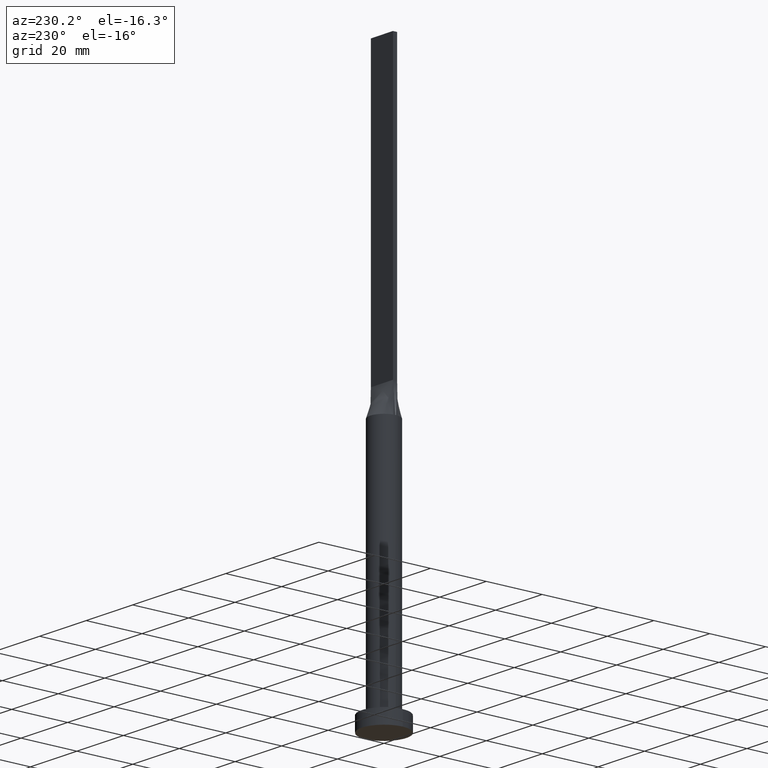
[diagram: clean part render]
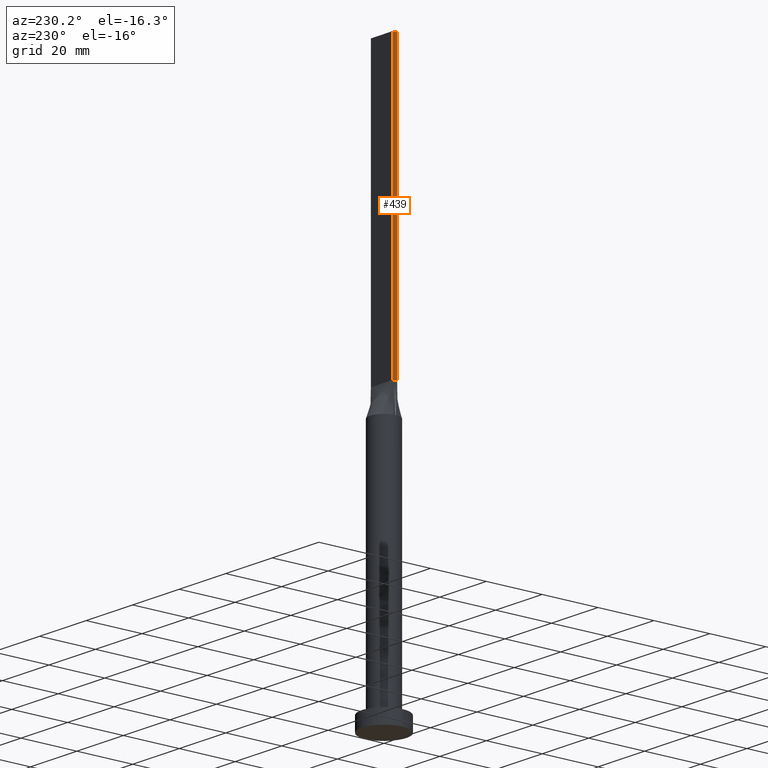
[diagram: same view with one face highlighted and labeled with its STEP entity id]
A machine part, auxiliary view. The second image highlights one B-rep face of the part: STEP entity #439.
In plain terms, the highlighted planar face has unit normal (1, 0, -0).
Its self-contained STEP definition (entity closure, byte-faithful):
#23 = FACE_OUTER_BOUND ( 'NONE', #105, .T. ) ;
#24 = CARTESIAN_POINT ( 'NONE',  ( -4.750000000000000000, 0.7500000000000002220, 200.0000000000000000 ) ) ;
#47 = VECTOR ( 'NONE', #360, 1000.000000000000000 ) ;
#51 = ORIENTED_EDGE ( 'NONE', *, *, #355, .T. ) ;
#54 = AXIS2_PLACEMENT_3D ( 'NONE', #449, #176, #162 ) ;
#66 = VECTOR ( 'NONE', #357, 1000.000000000000000 ) ;
#69 = VERTEX_POINT ( 'NONE', #526 ) ;
#87 = VERTEX_POINT ( 'NONE', #314 ) ;
#92 = VERTEX_POINT ( 'NONE', #598 ) ;
#105 = EDGE_LOOP ( 'NONE', ( #384, #503, #592, #51 ) ) ;
#113 = EDGE_CURVE ( 'NONE', #588, #87, #228, .T. ) ;
#133 = LINE ( 'NONE', #213, #66 ) ;
#156 = EDGE_CURVE ( 'NONE', #87, #69, #133, .T. ) ;
#162 = DIRECTION ( 'NONE',  ( -0.000000000000000000, 0.000000000000000000, -1.000000000000000000 ) ) ;
#176 = DIRECTION ( 'NONE',  ( 1.000000000000000000, 0.000000000000000000, -0.000000000000000000 ) ) ;
#210 = EDGE_CURVE ( 'NONE', #92, #69, #317, .T. ) ;
#213 = CARTESIAN_POINT ( 'NONE',  ( -4.750000000000000000, -0.7499999999999991118, 200.0000000000000000 ) ) ;
#228 = LINE ( 'NONE', #24, #47 ) ;
#294 = CARTESIAN_POINT ( 'NONE',  ( -4.750000000000000000, 0.7500000000000002220, 200.0000000000000000 ) ) ;
#314 = CARTESIAN_POINT ( 'NONE',  ( -4.750000000000000000, -0.7499999999999991118, 200.0000000000000000 ) ) ;
#317 = LINE ( 'NONE', #468, #604 ) ;
#355 = EDGE_CURVE ( 'NONE', #588, #92, #528, .T. ) ;
#357 = DIRECTION ( 'NONE',  ( -0.000000000000000000, -0.000000000000000000, -1.000000000000000000 ) ) ;
#360 = DIRECTION ( 'NONE',  ( 0.000000000000000000, -1.000000000000000000, 0.000000000000000000 ) ) ;
#384 = ORIENTED_EDGE ( 'NONE', *, *, #210, .T. ) ;
#430 = DIRECTION ( 'NONE',  ( 0.000000000000000000, -1.000000000000000000, 0.000000000000000000 ) ) ;
#439 = ADVANCED_FACE ( 'NONE', ( #23 ), #498, .F. ) ;
#449 = CARTESIAN_POINT ( 'NONE',  ( -4.750000000000000000, 0.7500000000000002220, 200.0000000000000000 ) ) ;
#468 = CARTESIAN_POINT ( 'NONE',  ( -4.750000000000000000, 0.7500000000000002220, 100.0000000000000000 ) ) ;
#498 = PLANE ( 'NONE',  #54 ) ;
#503 = ORIENTED_EDGE ( 'NONE', *, *, #156, .F. ) ;
#523 = DIRECTION ( 'NONE',  ( -0.000000000000000000, -0.000000000000000000, -1.000000000000000000 ) ) ;
#526 = CARTESIAN_POINT ( 'NONE',  ( -4.750000000000000000, -0.7499999999999991118, 100.0000000000000000 ) ) ;
#528 = LINE ( 'NONE', #294, #558 ) ;
#544 = CARTESIAN_POINT ( 'NONE',  ( -4.750000000000000000, 0.7500000000000002220, 200.0000000000000000 ) ) ;
#558 = VECTOR ( 'NONE', #523, 1000.000000000000000 ) ;
#588 = VERTEX_POINT ( 'NONE', #544 ) ;
#592 = ORIENTED_EDGE ( 'NONE', *, *, #113, .F. ) ;
#598 = CARTESIAN_POINT ( 'NONE',  ( -4.750000000000000000, 0.7500000000000002220, 100.0000000000000000 ) ) ;
#604 = VECTOR ( 'NONE', #430, 1000.000000000000000 ) ;